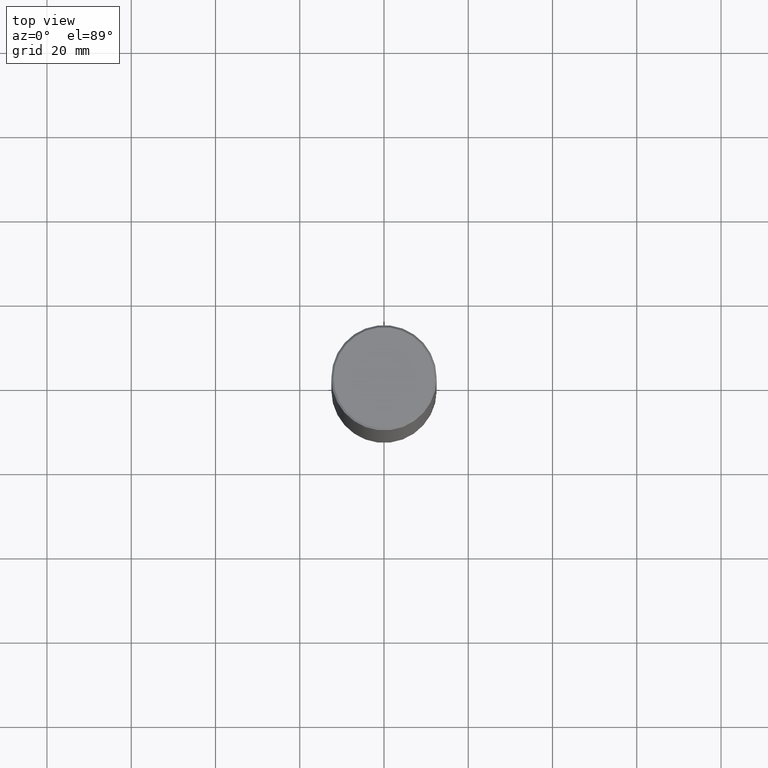
[diagram: clean part render]
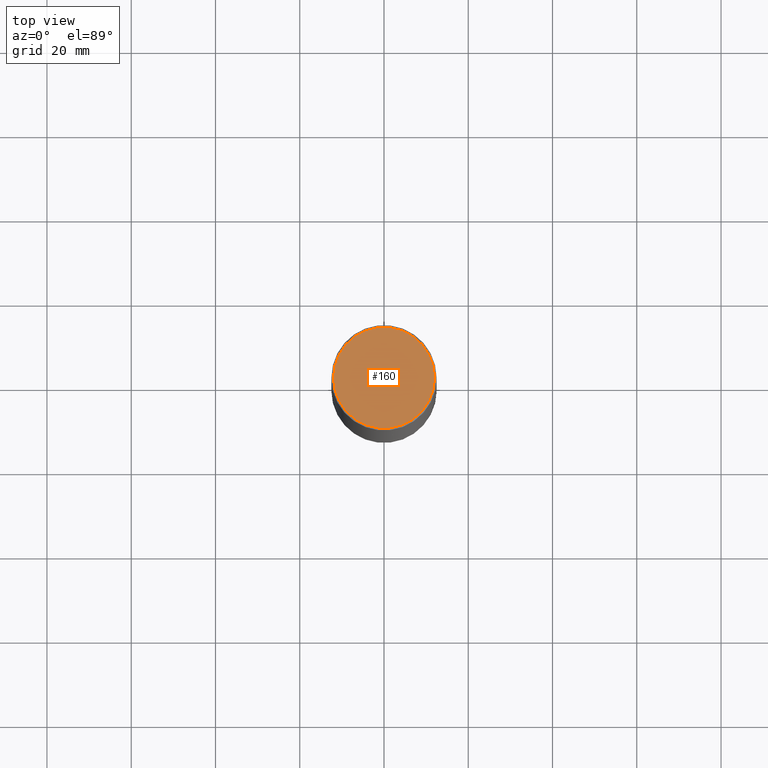
[diagram: same view with one face highlighted and labeled with its STEP entity id]
A machine part, top view. The second image highlights one B-rep face of the part: STEP entity #160.
In plain terms, the highlighted planar face has unit normal (0, -0, -1).
Its self-contained STEP definition (entity closure, byte-faithful):
#8 = AXIS2_PLACEMENT_3D ( 'NONE', #99, #317, #208 ) ;
#13 = DIRECTION ( 'NONE',  ( 2.438088387897960049E-29, -3.491481338843145188E-15, -1.000000000000000000 ) ) ;
#51 = CARTESIAN_POINT ( 'NONE',  ( -0.4721499999999995700, 3.331920641657998857E-15, 8.537024980177643606E-18 ) ) ;
#56 = ORIENTED_EDGE ( 'NONE', *, *, #205, .T. ) ;
#89 = EDGE_LOOP ( 'NONE', ( #248, #56 ) ) ;
#99 = CARTESIAN_POINT ( 'NONE',  ( -2.087702828670439639E-46, 2.980686340760894400E-32, 8.537024980200822558E-18 ) ) ;
#123 = AXIS2_PLACEMENT_3D ( 'NONE', #346, #261, #260 ) ;
#149 = EDGE_CURVE ( 'NONE', #279, #274, #333, .T. ) ;
#160 = ADVANCED_FACE ( 'NONE', ( #259 ), #289, .F. ) ;
#176 = DIRECTION ( 'NONE',  ( -1.000000000000000000, 6.982962677686265922E-15, -4.876176775795935793E-29 ) ) ;
#205 = EDGE_CURVE ( 'NONE', #274, #279, #220, .T. ) ;
#208 = DIRECTION ( 'NONE',  ( 1.000000000000000000, -6.982962677686265922E-15, 4.876006802227163537E-29 ) ) ;
#220 = CIRCLE ( 'NONE', #123, 0.4721499999999995700 ) ;
#239 = CARTESIAN_POINT ( 'NONE',  ( 3.297005828269567603E-15, 0.4721499999999995700, -1.644234401644689291E-15 ) ) ;
#245 = AXIS2_PLACEMENT_3D ( 'NONE', #239, #13, #176 ) ;
#248 = ORIENTED_EDGE ( 'NONE', *, *, #149, .T. ) ;
#259 = FACE_OUTER_BOUND ( 'NONE', #89, .T. ) ;
#260 = DIRECTION ( 'NONE',  ( 1.000000000000000000, -6.982962677686265922E-15, 4.876006802227163537E-29 ) ) ;
#261 = DIRECTION ( 'NONE',  ( -2.445468806185136597E-29, 3.491481338843145583E-15, 1.000000000000000000 ) ) ;
#274 = VERTEX_POINT ( 'NONE', #318 ) ;
#279 = VERTEX_POINT ( 'NONE', #51 ) ;
#289 = PLANE ( 'NONE',  #245 ) ;
#317 = DIRECTION ( 'NONE',  ( -2.445468806185136597E-29, 3.491481338843145583E-15, 1.000000000000000000 ) ) ;
#318 = CARTESIAN_POINT ( 'NONE',  ( 0.4721499999999995700, -3.342703923013973002E-15, 8.537024980224040028E-18 ) ) ;
#333 = CIRCLE ( 'NONE', #8, 0.4721499999999995700 ) ;
#346 = CARTESIAN_POINT ( 'NONE',  ( -2.087702828670439639E-46, 2.980686340760894400E-32, 8.537024980200822558E-18 ) ) ;